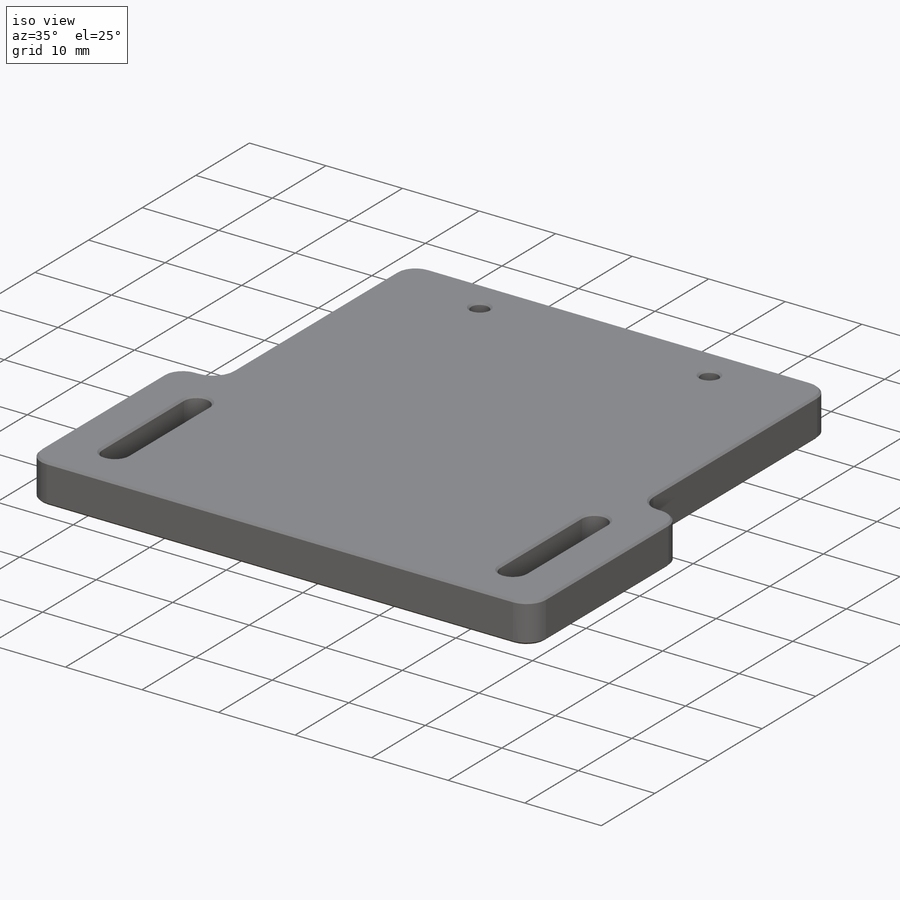
[diagram: iso view]
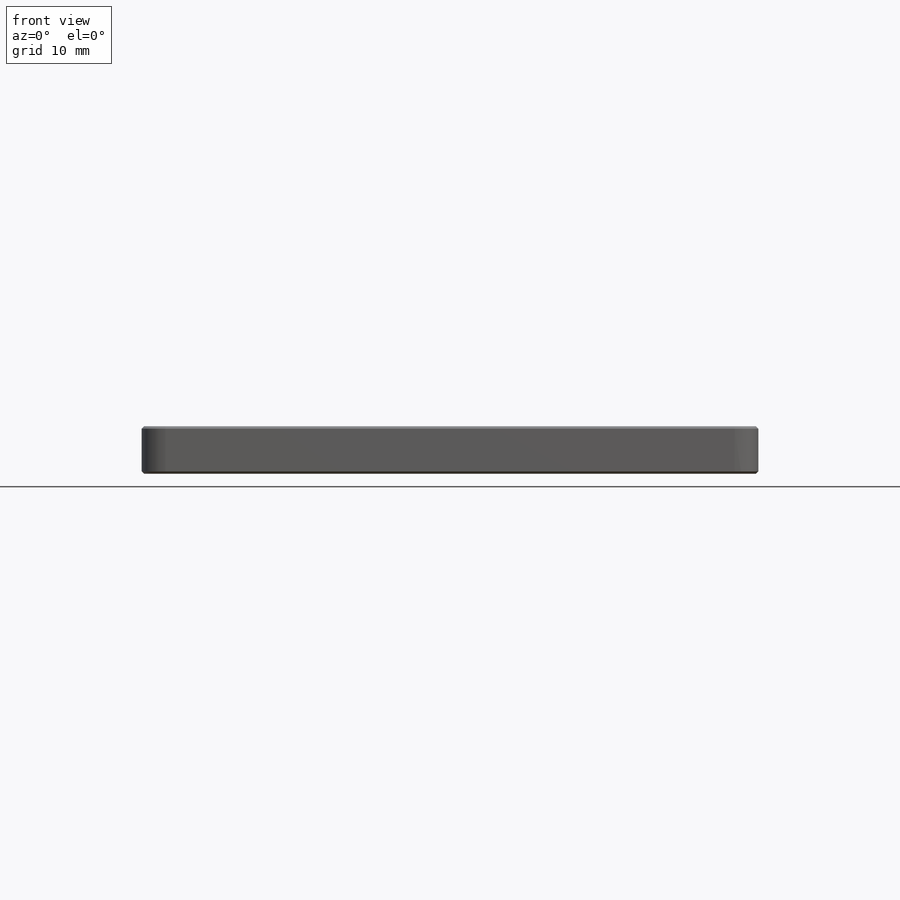
[diagram: front view]
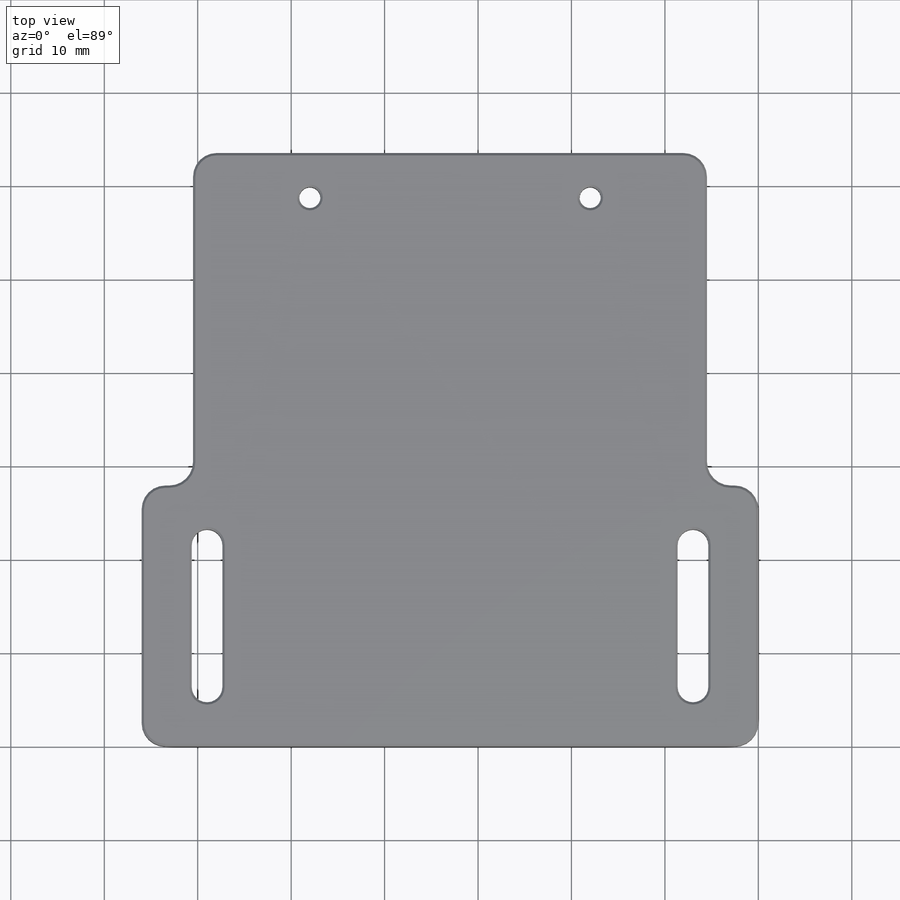
[diagram: top view]
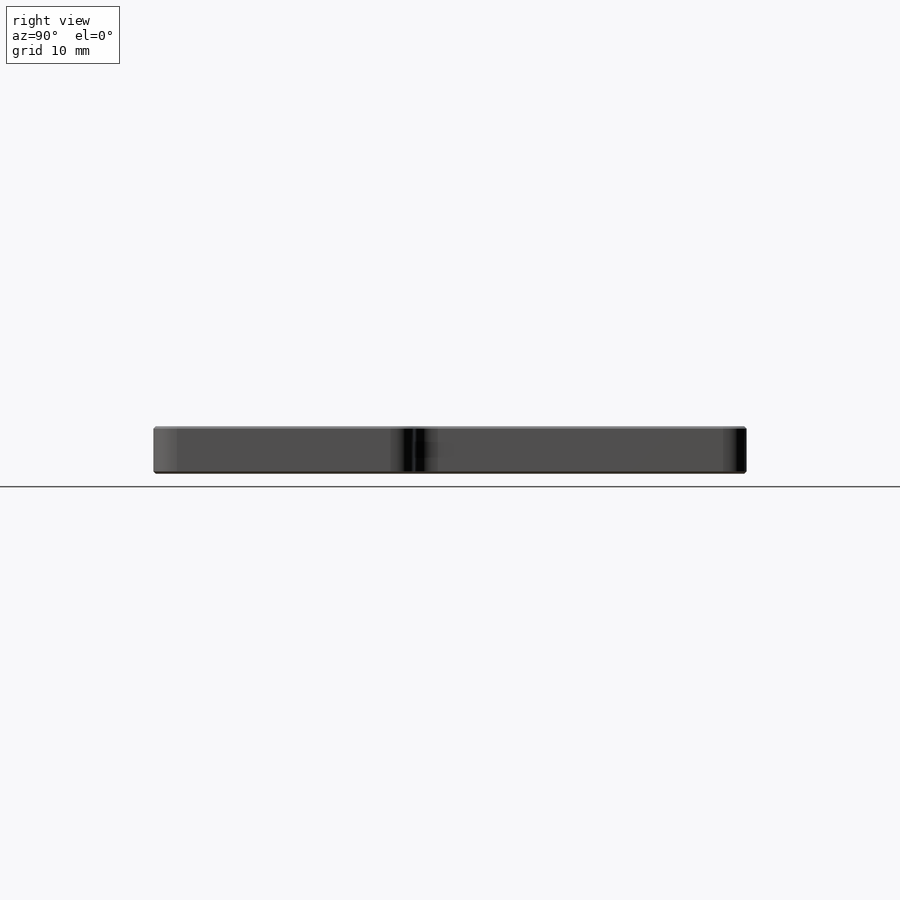
[diagram: right view]
SOLIDWORKS PART (.sldprt)
format: sldprt  version: not decoded by parser v0  size: 346,624 bytes
history: native  units: mm
features: sketch x7, hole x2, cut_extrude x2, thread x2, fillet x2, material x1, extrude x1, chamfer x1 + 1 further entry (+13 scaffold rows collapsed)
feature tree (32):
  scaffold x13  (default folders/planes/origin — collapsed)
  material  "6061-T6 Al"
  "Origin"  ID=-1
  sketch  "Sketch1"  dims[D1=66.0mm D2=63.5mm]
  extrude  "Boss-Extrude1"  Depth=5.08mm
  hole  "#4 Clearance Hole1"  Diameter=3.2639mm Depth=25.4mm
  sketch  "Sketch4"  dims[D1=26.0mm D2=26.0mm D3=6.35mm]
  sketch  "Sketch3"  dims[hole-wizard template sketch: 47 standard entries collapsed; hole parameters kept: c15.Hole Depth=25.4mm c15.D3=~14.816244mm c15.Drill Angle=118.0deg]
  sketch  "Sketch6"  dims[D1=55.0mm D2=~35.589114mm]
  cut_extrude  "Cut-Extrude1"  Depth=5.08mm
  hole  "#4-40 Tapped Hole1"  Diameter=2.2606mm Depth=7.5946mm
  sketch  "Sketch8"  dims[D1=15.0mm D2=15.0mm D3=4.7625mm]
  sketch  "Sketch7"  dims[hole-wizard template sketch: 50 standard entries collapsed; hole parameters above]
  thread  "Hole Thread1"  Diameter=5.08mm  [1 undecoded]
  thread  "Hole Thread2"  Diameter=5.08mm  [1 undecoded]
  fillet  "Fillet1"  Radius=2.54mm
  fillet  "Fillet2"  Radius=2.54mm
  sketch  "Sketch9"  dims[D5=1.6383mm D6=1.6383mm D1=15.24mm D2=6.35mm D3=26.0mm D4=26.0mm]
  cut_extrude  "Cut-Extrude2"  [1 undecoded]
  chamfer  "Chamfer1"  Distance=0.254mm Angle=45deg
decode coverage: 16 of 17 modeling features carry decoded parameters; 1 rows unclassified (native names shown)
note: ~ marks probable driven/reference dimensions
note: 3 parameter values undecoded
note: suppression state not decoded; provenance and decode notes live in map.json
